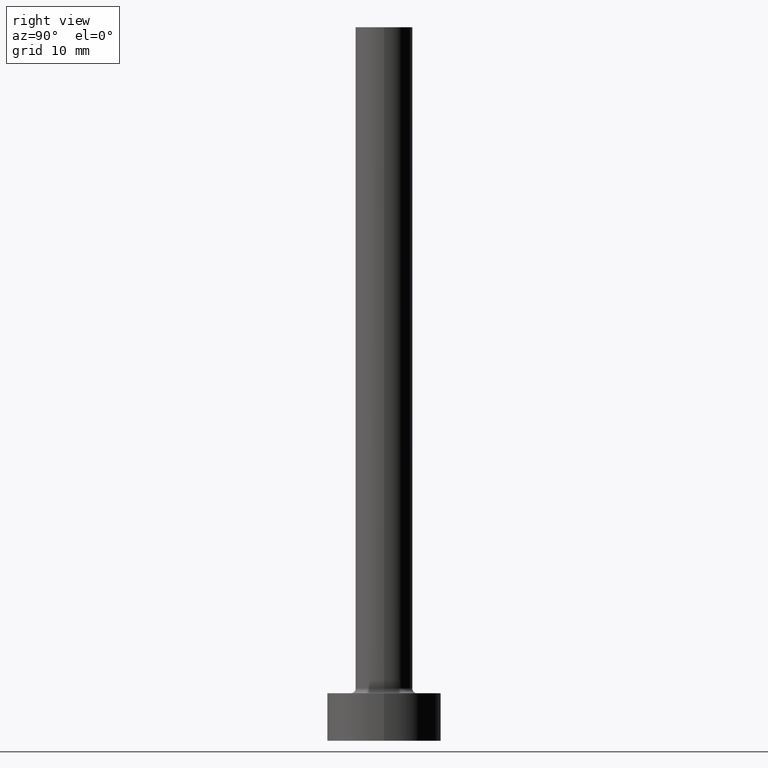
[diagram: clean part render]
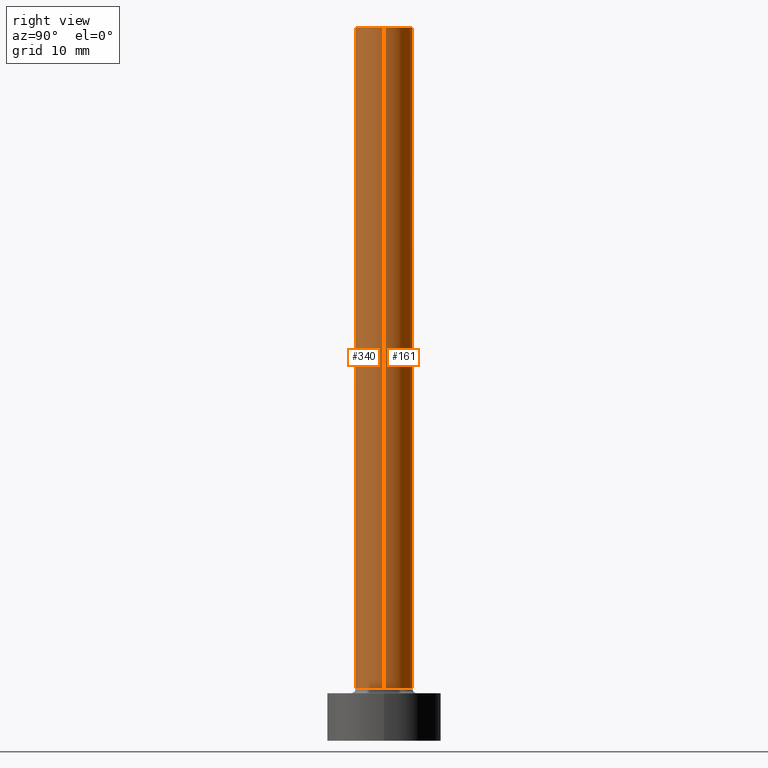
[diagram: same view with one multi-face feature highlighted, each face labeled with its STEP entity id]
A machine part, right view. The highlighted faces form ONE feature: a constant-radius fillet chain: 2 tangent blend faces with common blend radius 3 mm. The faces share edges in the B-rep.
Their STEP definitions:
[1] entity #340 (Cylinder):
#23 = CARTESIAN_POINT ( 'NONE',  ( -3.000000000000000444, 0.000000000000000000, 75.00000000000001421 ) ) ;
#48 = DIRECTION ( 'NONE',  ( -1.000000000000000000, 0.000000000000000000, 0.000000000000000000 ) ) ;
#76 = CYLINDRICAL_SURFACE ( 'NONE', #427, 3.000000000000000444 ) ;
#88 = EDGE_CURVE ( 'NONE', #183, #212, #423, .T. ) ;
#114 = LINE ( 'NONE', #23, #155 ) ;
#116 = VERTEX_POINT ( 'NONE', #134 ) ;
#134 = CARTESIAN_POINT ( 'NONE',  ( -3.000000000000000444, 0.000000000000000000, 75.00000000000001421 ) ) ;
#137 = EDGE_CURVE ( 'NONE', #116, #447, #222, .T. ) ;
#148 = DIRECTION ( 'NONE',  ( 0.000000000000000000, 0.000000000000000000, 1.000000000000000000 ) ) ;
#149 = LINE ( 'NONE', #390, #446 ) ;
#154 = CARTESIAN_POINT ( 'NONE',  ( -3.000000000000000444, 0.000000000000000000, 5.500000000000005329 ) ) ;
#155 = VECTOR ( 'NONE', #158, 1000.000000000000000 ) ;
#158 = DIRECTION ( 'NONE',  ( -0.000000000000000000, -0.000000000000000000, -1.000000000000000000 ) ) ;
#167 = FACE_OUTER_BOUND ( 'NONE', #182, .T. ) ;
#170 = DIRECTION ( 'NONE',  ( -0.000000000000000000, -0.000000000000000000, -1.000000000000000000 ) ) ;
#176 = DIRECTION ( 'NONE',  ( 0.000000000000000000, 0.000000000000000000, 1.000000000000000000 ) ) ;
#181 = EDGE_CURVE ( 'NONE', #447, #212, #149, .T. ) ;
#182 = EDGE_LOOP ( 'NONE', ( #336, #276, #200, #352 ) ) ;
#183 = VERTEX_POINT ( 'NONE', #154 ) ;
#184 = CARTESIAN_POINT ( 'NONE',  ( 0.000000000000000000, 0.000000000000000000, 5.500000000000005329 ) ) ;
#192 = DIRECTION ( 'NONE',  ( 1.000000000000000000, 0.000000000000000000, 0.000000000000000000 ) ) ;
#193 = AXIS2_PLACEMENT_3D ( 'NONE', #248, #148, #316 ) ;
#200 = ORIENTED_EDGE ( 'NONE', *, *, #279, .T. ) ;
#212 = VERTEX_POINT ( 'NONE', #223 ) ;
#222 = CIRCLE ( 'NONE', #193, 3.000000000000000444 ) ;
#223 = CARTESIAN_POINT ( 'NONE',  ( 3.000000000000000444, 3.673940397442060361E-16, 5.500000000000005329 ) ) ;
#248 = CARTESIAN_POINT ( 'NONE',  ( 0.000000000000000000, 0.000000000000000000, 75.00000000000001421 ) ) ;
#276 = ORIENTED_EDGE ( 'NONE', *, *, #137, .F. ) ;
#279 = EDGE_CURVE ( 'NONE', #116, #183, #114, .T. ) ;
#316 = DIRECTION ( 'NONE',  ( 1.000000000000000000, 0.000000000000000000, 0.000000000000000000 ) ) ;
#322 = DIRECTION ( 'NONE',  ( -0.000000000000000000, -0.000000000000000000, -1.000000000000000000 ) ) ;
#336 = ORIENTED_EDGE ( 'NONE', *, *, #181, .F. ) ;
#340 = ADVANCED_FACE ( 'NONE', ( #167 ), #76, .T. ) ;
#352 = ORIENTED_EDGE ( 'NONE', *, *, #88, .T. ) ;
#368 = CARTESIAN_POINT ( 'NONE',  ( 0.000000000000000000, 0.000000000000000000, 75.00000000000001421 ) ) ;
#376 = AXIS2_PLACEMENT_3D ( 'NONE', #184, #176, #192 ) ;
#390 = CARTESIAN_POINT ( 'NONE',  ( 3.000000000000000444, 3.673940397442060361E-16, 75.00000000000001421 ) ) ;
#423 = CIRCLE ( 'NONE', #376, 3.000000000000000444 ) ;
#427 = AXIS2_PLACEMENT_3D ( 'NONE', #368, #170, #48 ) ;
#445 = CARTESIAN_POINT ( 'NONE',  ( 3.000000000000000444, 3.673940397442060361E-16, 75.00000000000001421 ) ) ;
#446 = VECTOR ( 'NONE', #322, 1000.000000000000000 ) ;
#447 = VERTEX_POINT ( 'NONE', #445 ) ;
[2] entity #161 (Cylinder):
#9 = DIRECTION ( 'NONE',  ( 0.000000000000000000, 0.000000000000000000, 1.000000000000000000 ) ) ;
#15 = FACE_OUTER_BOUND ( 'NONE', #135, .T. ) ;
#23 = CARTESIAN_POINT ( 'NONE',  ( -3.000000000000000444, 0.000000000000000000, 75.00000000000001421 ) ) ;
#100 = ORIENTED_EDGE ( 'NONE', *, *, #279, .F. ) ;
#111 = DIRECTION ( 'NONE',  ( 1.000000000000000000, 0.000000000000000000, 0.000000000000000000 ) ) ;
#114 = LINE ( 'NONE', #23, #155 ) ;
#116 = VERTEX_POINT ( 'NONE', #134 ) ;
#126 = EDGE_CURVE ( 'NONE', #212, #183, #188, .T. ) ;
#134 = CARTESIAN_POINT ( 'NONE',  ( -3.000000000000000444, 0.000000000000000000, 75.00000000000001421 ) ) ;
#135 = EDGE_LOOP ( 'NONE', ( #266, #426, #379, #100 ) ) ;
#146 = DIRECTION ( 'NONE',  ( -1.000000000000000000, 0.000000000000000000, 0.000000000000000000 ) ) ;
#149 = LINE ( 'NONE', #390, #446 ) ;
#154 = CARTESIAN_POINT ( 'NONE',  ( -3.000000000000000444, 0.000000000000000000, 5.500000000000005329 ) ) ;
#155 = VECTOR ( 'NONE', #158, 1000.000000000000000 ) ;
#158 = DIRECTION ( 'NONE',  ( -0.000000000000000000, -0.000000000000000000, -1.000000000000000000 ) ) ;
#161 = ADVANCED_FACE ( 'NONE', ( #15 ), #354, .T. ) ;
#181 = EDGE_CURVE ( 'NONE', #447, #212, #149, .T. ) ;
#183 = VERTEX_POINT ( 'NONE', #154 ) ;
#188 = CIRCLE ( 'NONE', #453, 3.000000000000000444 ) ;
#208 = DIRECTION ( 'NONE',  ( 1.000000000000000000, 0.000000000000000000, 0.000000000000000000 ) ) ;
#212 = VERTEX_POINT ( 'NONE', #223 ) ;
#220 = EDGE_CURVE ( 'NONE', #447, #116, #434, .T. ) ;
#223 = CARTESIAN_POINT ( 'NONE',  ( 3.000000000000000444, 3.673940397442060361E-16, 5.500000000000005329 ) ) ;
#242 = AXIS2_PLACEMENT_3D ( 'NONE', #326, #355, #111 ) ;
#244 = DIRECTION ( 'NONE',  ( -0.000000000000000000, -0.000000000000000000, -1.000000000000000000 ) ) ;
#266 = ORIENTED_EDGE ( 'NONE', *, *, #220, .F. ) ;
#279 = EDGE_CURVE ( 'NONE', #116, #183, #114, .T. ) ;
#297 = CARTESIAN_POINT ( 'NONE',  ( 0.000000000000000000, 0.000000000000000000, 5.500000000000005329 ) ) ;
#317 = AXIS2_PLACEMENT_3D ( 'NONE', #441, #244, #146 ) ;
#322 = DIRECTION ( 'NONE',  ( -0.000000000000000000, -0.000000000000000000, -1.000000000000000000 ) ) ;
#326 = CARTESIAN_POINT ( 'NONE',  ( 0.000000000000000000, 0.000000000000000000, 75.00000000000001421 ) ) ;
#354 = CYLINDRICAL_SURFACE ( 'NONE', #317, 3.000000000000000444 ) ;
#355 = DIRECTION ( 'NONE',  ( 0.000000000000000000, 0.000000000000000000, 1.000000000000000000 ) ) ;
#379 = ORIENTED_EDGE ( 'NONE', *, *, #126, .T. ) ;
#390 = CARTESIAN_POINT ( 'NONE',  ( 3.000000000000000444, 3.673940397442060361E-16, 75.00000000000001421 ) ) ;
#426 = ORIENTED_EDGE ( 'NONE', *, *, #181, .T. ) ;
#434 = CIRCLE ( 'NONE', #242, 3.000000000000000444 ) ;
#441 = CARTESIAN_POINT ( 'NONE',  ( 0.000000000000000000, 0.000000000000000000, 75.00000000000001421 ) ) ;
#445 = CARTESIAN_POINT ( 'NONE',  ( 3.000000000000000444, 3.673940397442060361E-16, 75.00000000000001421 ) ) ;
#446 = VECTOR ( 'NONE', #322, 1000.000000000000000 ) ;
#447 = VERTEX_POINT ( 'NONE', #445 ) ;
#453 = AXIS2_PLACEMENT_3D ( 'NONE', #297, #9, #208 ) ;